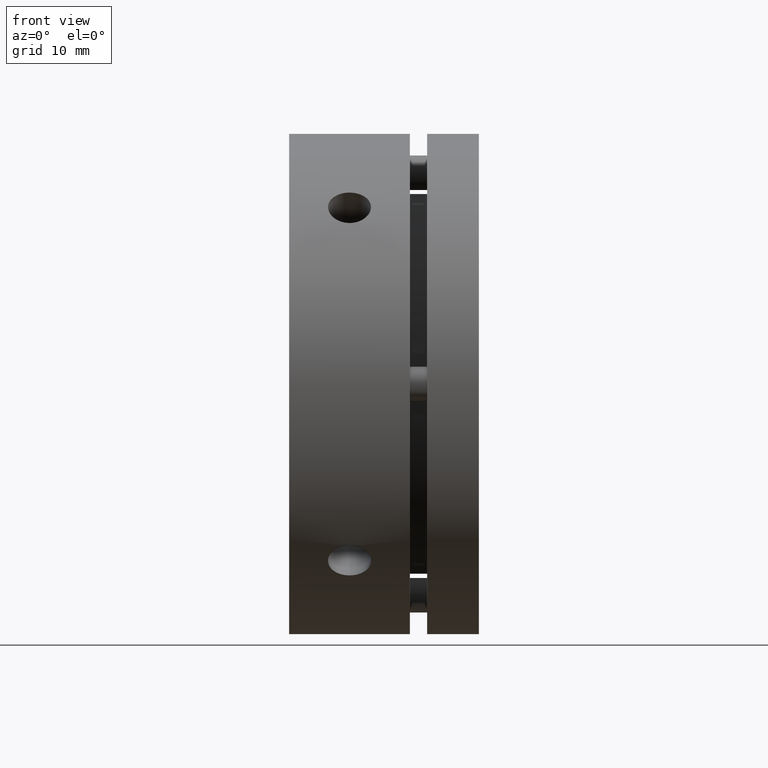
[diagram: clean part render]
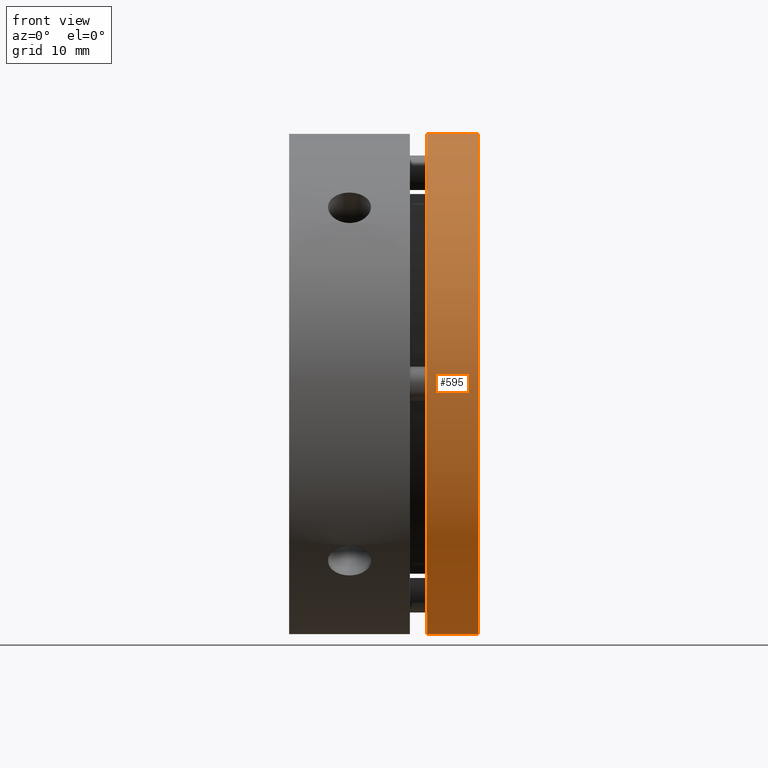
[diagram: same view with one face highlighted and labeled with its STEP entity id]
A machine part, front view. The second image highlights one B-rep face of the part: STEP entity #595.
In plain terms, the highlighted cylindrical surface (partial cylindrical patch) has radius 29 mm, axis along (1, 0, 0).
Its self-contained STEP definition (entity closure, byte-faithful):
#245 = ORIENTED_EDGE ( 'NONE', *, *, #3514, .T. ) ;
#393 = ORIENTED_EDGE ( 'NONE', *, *, #1615, .T. ) ;
#418 = ORIENTED_EDGE ( 'NONE', *, *, #3522, .F. ) ;
#436 = ORIENTED_EDGE ( 'NONE', *, *, #1605, .T. ) ;
#455 = VERTEX_POINT ( 'NONE', #1705 ) ;
#456 = VERTEX_POINT ( 'NONE', #1711 ) ;
#475 = AXIS2_PLACEMENT_3D ( 'NONE', #2412, #2413, #2414 ) ;
#485 = AXIS2_PLACEMENT_3D ( 'NONE', #2445, #2446, #2447 ) ;
#595 = ADVANCED_FACE ( 'NONE', ( #1316 ), #1333, .T. ) ;
#970 = CIRCLE ( 'NONE', #475, 29.00000000000000400 ) ;
#980 = CIRCLE ( 'NONE', #485, 29.00000000000000400 ) ;
#1136 = LINE ( 'NONE', #3027, #1138 ) ;
#1138 = VECTOR ( 'NONE', #3015, 1000.000000000000000 ) ;
#1149 = LINE ( 'NONE', #3045, #1151 ) ;
#1151 = VECTOR ( 'NONE', #3033, 1000.000000000000000 ) ;
#1316 = FACE_OUTER_BOUND ( 'NONE', #3374, .T. ) ;
#1333 = CYLINDRICAL_SURFACE ( 'NONE', #1628, 29.00000000000000400 ) ;
#1605 = EDGE_CURVE ( 'NONE', #455, #456, #970, .T. ) ;
#1615 = EDGE_CURVE ( 'NONE', #3539, #3542, #980, .T. ) ;
#1628 = AXIS2_PLACEMENT_3D ( 'NONE', #1751, #1749, #1747 ) ;
#1705 = CARTESIAN_POINT ( 'NONE',  ( 21.99999999999999300, 0.0000000000000000000, -29.00000000000000400 ) ) ;
#1711 = CARTESIAN_POINT ( 'NONE',  ( 21.99999999999999300, 3.551475717527324800E-015, 29.00000000000000400 ) ) ;
#1747 = DIRECTION ( 'NONE',  ( 0.0000000000000000000, 0.0000000000000000000, -1.000000000000000000 ) ) ;
#1749 = DIRECTION ( 'NONE',  ( 1.000000000000000000, 0.0000000000000000000, 0.0000000000000000000 ) ) ;
#1751 = CARTESIAN_POINT ( 'NONE',  ( 10.99999999999999300, 0.0000000000000000000, 0.0000000000000000000 ) ) ;
#2412 = CARTESIAN_POINT ( 'NONE',  ( 21.99999999999999300, 0.0000000000000000000, 0.0000000000000000000 ) ) ;
#2413 = DIRECTION ( 'NONE',  ( -1.000000000000000000, -0.0000000000000000000, -0.0000000000000000000 ) ) ;
#2414 = DIRECTION ( 'NONE',  ( 0.0000000000000000000, 0.0000000000000000000, -1.000000000000000000 ) ) ;
#2445 = CARTESIAN_POINT ( 'NONE',  ( 15.99999999999999600, 0.0000000000000000000, 0.0000000000000000000 ) ) ;
#2446 = DIRECTION ( 'NONE',  ( 1.000000000000000000, 0.0000000000000000000, 0.0000000000000000000 ) ) ;
#2447 = DIRECTION ( 'NONE',  ( 0.0000000000000000000, 0.0000000000000000000, -1.000000000000000000 ) ) ;
#3015 = DIRECTION ( 'NONE',  ( 1.000000000000000000, 0.0000000000000000000, 0.0000000000000000000 ) ) ;
#3027 = CARTESIAN_POINT ( 'NONE',  ( 10.99999999999999300, 0.0000000000000000000, -29.00000000000000400 ) ) ;
#3033 = DIRECTION ( 'NONE',  ( 1.000000000000000000, 0.0000000000000000000, 0.0000000000000000000 ) ) ;
#3045 = CARTESIAN_POINT ( 'NONE',  ( 10.99999999999999300, 3.551475717527324800E-015, 29.00000000000000400 ) ) ;
#3084 = CARTESIAN_POINT ( 'NONE',  ( 15.99999999999999600, 3.551475717527324800E-015, 29.00000000000000400 ) ) ;
#3089 = CARTESIAN_POINT ( 'NONE',  ( 15.99999999999999600, 0.0000000000000000000, -29.00000000000000400 ) ) ;
#3374 = EDGE_LOOP ( 'NONE', ( #418, #393, #245, #436 ) ) ;
#3514 = EDGE_CURVE ( 'NONE', #3542, #455, #1136, .T. ) ;
#3522 = EDGE_CURVE ( 'NONE', #3539, #456, #1149, .T. ) ;
#3539 = VERTEX_POINT ( 'NONE', #3084 ) ;
#3542 = VERTEX_POINT ( 'NONE', #3089 ) ;